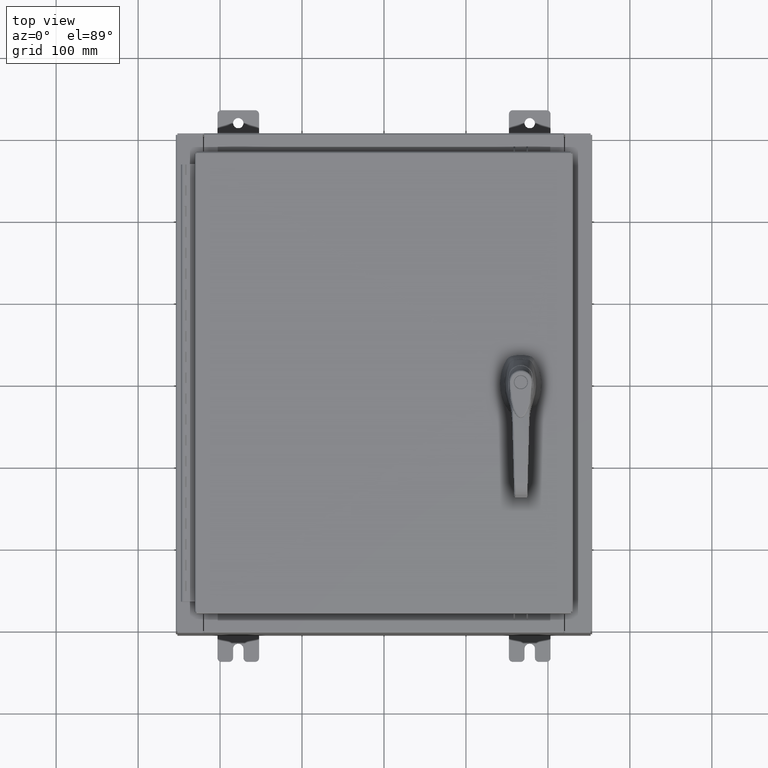
[diagram: clean part render]
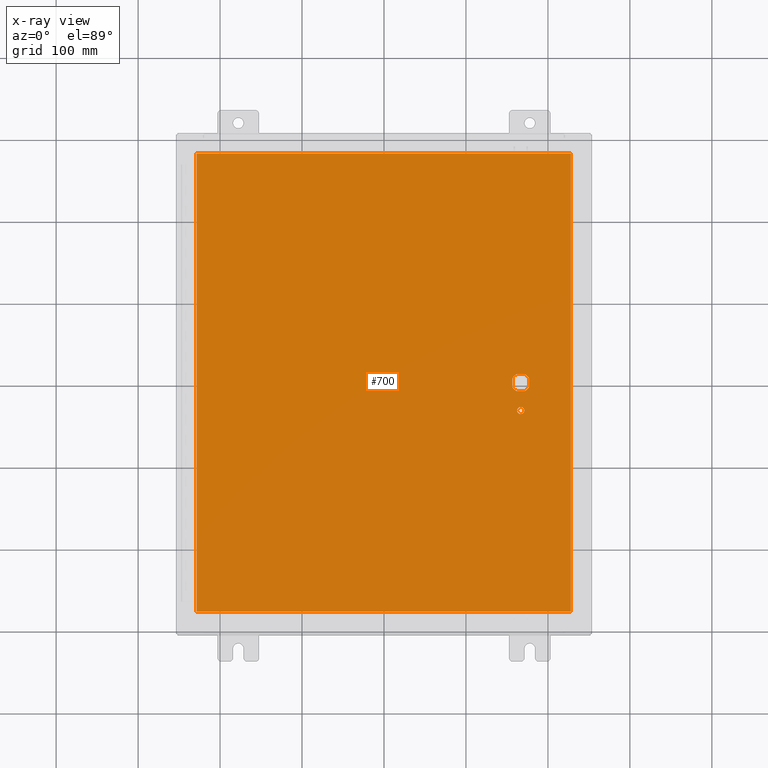
[diagram: x-ray — body ghosted, one internal face saturated and labeled with its STEP entity id]
A machine part, top view, then the same camera in x-ray: the body is ghosted and one INTERNAL B-rep face — a face not visible from any outside direction — is saturated and labeled: STEP entity #700.
In plain terms, the highlighted planar face has unit normal (0, 0, -1).
Its self-contained STEP definition (entity closure, byte-faithful):
#336 = FACE_BOUND ( 'NONE', #86844, .T. ) ;
#700 = ADVANCED_FACE ( 'NONE', ( #47177, #44428, #336 ), #49304, .T. ) ;
#1377 = EDGE_CURVE ( 'NONE', #5044, #94620, #53486, .T. ) ;
#2254 = DIRECTION ( 'NONE',  ( 0.0000000000000000000, -1.000000000000000000, 0.0000000000000000000 ) ) ;
#3161 = VERTEX_POINT ( 'NONE', #6481 ) ;
#3750 = AXIS2_PLACEMENT_3D ( 'NONE', #81539, #29363, #90413 ) ;
#4256 = DIRECTION ( 'NONE',  ( 0.0000000000000000000, 1.000000000000000000, 0.0000000000000000000 ) ) ;
#5044 = VERTEX_POINT ( 'NONE', #45808 ) ;
#5691 = EDGE_CURVE ( 'NONE', #94620, #77066, #73472, .T. ) ;
#6481 = CARTESIAN_POINT ( 'NONE',  ( -8.990299999999997700, -11.00630000000000100, -0.07470000000000000300 ) ) ;
#11103 = CARTESIAN_POINT ( 'NONE',  ( 6.980999999999924400, -0.2002273707563080300, -0.07470000000000003000 ) ) ;
#11163 = CARTESIAN_POINT ( 'NONE',  ( 6.175000000000072700, 0.0000000000000000000, -0.07470000000000003000 ) ) ;
#12746 = VERTEX_POINT ( 'NONE', #52435 ) ;
#15709 = CARTESIAN_POINT ( 'NONE',  ( 6.778227370756308500, 0.4029999999999250300, -0.07470000000000003000 ) ) ;
#16174 = CARTESIAN_POINT ( 'NONE',  ( 6.980999999999924400, 0.2002273707563080300, -0.07470000000000003000 ) ) ;
#16322 = CARTESIAN_POINT ( 'NONE',  ( 8.990299999999997700, -11.00630000000000000, -0.07470000000000000300 ) ) ;
#16922 = DIRECTION ( 'NONE',  ( -0.0000000000000000000, -0.0000000000000000000, 1.000000000000000000 ) ) ;
#17497 = DIRECTION ( 'NONE',  ( -0.0000000000000000000, -0.0000000000000000000, 1.000000000000000000 ) ) ;
#18223 = AXIS2_PLACEMENT_3D ( 'NONE', #28388, #89399, #37247 ) ;
#18788 = EDGE_CURVE ( 'NONE', #12746, #19975, #79058, .T. ) ;
#19975 = VERTEX_POINT ( 'NONE', #105579 ) ;
#20400 = ORIENTED_EDGE ( 'NONE', *, *, #89508, .F. ) ;
#20974 = CIRCLE ( 'NONE', #43284, 0.4499999999999156900 ) ;
#21824 = CARTESIAN_POINT ( 'NONE',  ( 8.990299999999999500, 11.00630000000000000, -0.07470000000000019700 ) ) ;
#22507 = LINE ( 'NONE', #61146, #110072 ) ;
#22527 = CARTESIAN_POINT ( 'NONE',  ( 6.577999999999998500, 0.0000000000000000000, -0.07470000000000003000 ) ) ;
#23344 = DIRECTION ( 'NONE',  ( 1.000000000000000000, -0.0000000000000000000, -0.0000000000000000000 ) ) ;
#24989 = ORIENTED_EDGE ( 'NONE', *, *, #86472, .F. ) ;
#27479 = CARTESIAN_POINT ( 'NONE',  ( 6.749499999999998500, -1.338000000000000100, -0.07470000000000003000 ) ) ;
#28388 = CARTESIAN_POINT ( 'NONE',  ( 6.577999999999998500, -1.338000000000000100, -0.07470000000000003000 ) ) ;
#29363 = DIRECTION ( 'NONE',  ( -0.0000000000000000000, -0.0000000000000000000, 1.000000000000000000 ) ) ;
#29969 = VECTOR ( 'NONE', #48286, 39.37007874015748100 ) ;
#31354 = DIRECTION ( 'NONE',  ( -1.000000000000000000, 0.0000000000000000000, 0.0000000000000000000 ) ) ;
#35518 = LINE ( 'NONE', #66854, #61414 ) ;
#36720 = EDGE_CURVE ( 'NONE', #78591, #5044, #68829, .T. ) ;
#37247 = DIRECTION ( 'NONE',  ( -1.000000000000000000, 0.0000000000000000000, 0.0000000000000000000 ) ) ;
#38603 = DIRECTION ( 'NONE',  ( 0.0000000000000000000, -1.000000000000000000, 0.0000000000000000000 ) ) ;
#38652 = DIRECTION ( 'NONE',  ( -1.000000000000000000, 0.0000000000000000000, -0.0000000000000000000 ) ) ;
#40643 = ORIENTED_EDGE ( 'NONE', *, *, #82491, .T. ) ;
#40716 = AXIS2_PLACEMENT_3D ( 'NONE', #66097, #56023, #90383 ) ;
#42411 = CIRCLE ( 'NONE', #3750, 0.1715000000000000700 ) ;
#42793 = EDGE_CURVE ( 'NONE', #3161, #56463, #35518, .T. ) ;
#43284 = AXIS2_PLACEMENT_3D ( 'NONE', #22527, #83548, #31354 ) ;
#44084 = DIRECTION ( 'NONE',  ( 0.0000000000000000000, -1.000000000000000000, 0.0000000000000000000 ) ) ;
#44428 = FACE_OUTER_BOUND ( 'NONE', #84090, .T. ) ;
#44779 = ORIENTED_EDGE ( 'NONE', *, *, #92872, .F. ) ;
#45808 = CARTESIAN_POINT ( 'NONE',  ( 6.377772629243688500, -0.4029999999999250300, -0.07470000000000003000 ) ) ;
#47177 = FACE_BOUND ( 'NONE', #53402, .T. ) ;
#47378 = CARTESIAN_POINT ( 'NONE',  ( 6.980999999999924400, 0.0000000000000000000, -0.07470000000000003000 ) ) ;
#48286 = DIRECTION ( 'NONE',  ( -1.000000000000000000, -0.0000000000000000000, -0.0000000000000000000 ) ) ;
#49304 = PLANE ( 'NONE',  #65180 ) ;
#52370 = ORIENTED_EDGE ( 'NONE', *, *, #5691, .T. ) ;
#52435 = CARTESIAN_POINT ( 'NONE',  ( 8.990299999999997700, 11.00630000000000000, -0.07470000000000000300 ) ) ;
#52807 = CARTESIAN_POINT ( 'NONE',  ( -8.990299999999999500, 11.00630000000000100, -0.07470000000000019700 ) ) ;
#53402 = EDGE_LOOP ( 'NONE', ( #54213, #40643 ) ) ;
#53486 = LINE ( 'NONE', #57597, #97222 ) ;
#54213 = ORIENTED_EDGE ( 'NONE', *, *, #97761, .T. ) ;
#55844 = DIRECTION ( 'NONE',  ( 0.0000000000000000000, 0.0000000000000000000, -1.000000000000000000 ) ) ;
#56023 = DIRECTION ( 'NONE',  ( -0.0000000000000000000, -0.0000000000000000000, 1.000000000000000000 ) ) ;
#56463 = VERTEX_POINT ( 'NONE', #16322 ) ;
#57597 = CARTESIAN_POINT ( 'NONE',  ( 0.0000000000000000000, -0.4029999999999252000, -0.07470000000000003000 ) ) ;
#58902 = CARTESIAN_POINT ( 'NONE',  ( 0.0000000000000000000, 0.0000000000000000000, -0.07470000000000000300 ) ) ;
#60964 = ORIENTED_EDGE ( 'NONE', *, *, #84249, .T. ) ;
#61146 = CARTESIAN_POINT ( 'NONE',  ( 0.0000000000000000000, 0.4029999999999252000, -0.07470000000000003000 ) ) ;
#61414 = VECTOR ( 'NONE', #23344, 39.37007874015748100 ) ;
#62979 = LINE ( 'NONE', #52807, #83361 ) ;
#63882 = CARTESIAN_POINT ( 'NONE',  ( 6.778227370756308500, -0.4029999999999252000, -0.07470000000000003000 ) ) ;
#65180 = AXIS2_PLACEMENT_3D ( 'NONE', #58902, #55844, #38652 ) ;
#65389 = ORIENTED_EDGE ( 'NONE', *, *, #18788, .F. ) ;
#66097 = CARTESIAN_POINT ( 'NONE',  ( 6.577999999999998500, 0.0000000000000000000, -0.07470000000000003000 ) ) ;
#66766 = EDGE_CURVE ( 'NONE', #75467, #85301, #20974, .T. ) ;
#66854 = CARTESIAN_POINT ( 'NONE',  ( -8.990300000000001300, -11.00630000000000100, -0.07469999999999910000 ) ) ;
#67320 = CIRCLE ( 'NONE', #113590, 0.4499999999999156900 ) ;
#68818 = ORIENTED_EDGE ( 'NONE', *, *, #111131, .T. ) ;
#68829 = CIRCLE ( 'NONE', #73945, 0.4499999999999156900 ) ;
#69298 = CARTESIAN_POINT ( 'NONE',  ( 6.577999999999998500, 0.0000000000000000000, -0.07470000000000003000 ) ) ;
#69862 = CARTESIAN_POINT ( 'NONE',  ( 6.577999999999998500, 0.0000000000000000000, -0.07470000000000003000 ) ) ;
#70089 = LINE ( 'NONE', #47378, #90610 ) ;
#73472 = CIRCLE ( 'NONE', #40716, 0.4499999999999156900 ) ;
#73945 = AXIS2_PLACEMENT_3D ( 'NONE', #69862, #17497, #78575 ) ;
#75467 = VERTEX_POINT ( 'NONE', #94061 ) ;
#75497 = VERTEX_POINT ( 'NONE', #15709 ) ;
#76800 = CARTESIAN_POINT ( 'NONE',  ( 6.406499999999998500, -1.338000000000000100, -0.07470000000000003000 ) ) ;
#77066 = VERTEX_POINT ( 'NONE', #11103 ) ;
#78006 = DIRECTION ( 'NONE',  ( -1.000000000000000000, 0.0000000000000000000, 0.0000000000000000000 ) ) ;
#78575 = DIRECTION ( 'NONE',  ( -1.000000000000000000, 8.881784197001256300E-016, 0.0000000000000000000 ) ) ;
#78591 = VERTEX_POINT ( 'NONE', #89439 ) ;
#79058 = LINE ( 'NONE', #21824, #29969 ) ;
#81539 = CARTESIAN_POINT ( 'NONE',  ( 6.577999999999998500, -1.338000000000000100, -0.07470000000000003000 ) ) ;
#82117 = LINE ( 'NONE', #82274, #84904 ) ;
#82274 = CARTESIAN_POINT ( 'NONE',  ( 8.990299999999997700, -11.00630000000000000, -0.07470000000000021100 ) ) ;
#82491 = EDGE_CURVE ( 'NONE', #107346, #113549, #103136, .T. ) ;
#83361 = VECTOR ( 'NONE', #44084, 39.37007874015748100 ) ;
#83548 = DIRECTION ( 'NONE',  ( -0.0000000000000000000, -0.0000000000000000000, 1.000000000000000000 ) ) ;
#84090 = EDGE_LOOP ( 'NONE', ( #24989, #110843, #20400, #65389 ) ) ;
#84249 = EDGE_CURVE ( 'NONE', #98167, #75497, #67320, .T. ) ;
#84904 = VECTOR ( 'NONE', #4256, 39.37007874015748100 ) ;
#85301 = VERTEX_POINT ( 'NONE', #90876 ) ;
#86472 = EDGE_CURVE ( 'NONE', #56463, #12746, #82117, .T. ) ;
#86557 = ORIENTED_EDGE ( 'NONE', *, *, #36720, .T. ) ;
#86844 = EDGE_LOOP ( 'NONE', ( #52370, #44779, #60964, #90332, #107034, #68818, #86557, #111220 ) ) ;
#87696 = VECTOR ( 'NONE', #2254, 39.37007874015748100 ) ;
#89319 = DIRECTION ( 'NONE',  ( 1.000000000000000000, 0.0000000000000000000, 0.0000000000000000000 ) ) ;
#89399 = DIRECTION ( 'NONE',  ( -0.0000000000000000000, -0.0000000000000000000, 1.000000000000000000 ) ) ;
#89439 = CARTESIAN_POINT ( 'NONE',  ( 6.175000000000072700, -0.2002273707563079800, -0.07470000000000003000 ) ) ;
#89508 = EDGE_CURVE ( 'NONE', #19975, #3161, #62979, .T. ) ;
#90332 = ORIENTED_EDGE ( 'NONE', *, *, #102809, .T. ) ;
#90383 = DIRECTION ( 'NONE',  ( -1.000000000000000000, 0.0000000000000000000, 0.0000000000000000000 ) ) ;
#90413 = DIRECTION ( 'NONE',  ( -1.000000000000000000, 0.0000000000000000000, 0.0000000000000000000 ) ) ;
#90610 = VECTOR ( 'NONE', #38603, 39.37007874015748100 ) ;
#90876 = CARTESIAN_POINT ( 'NONE',  ( 6.175000000000072700, 0.2002273707563080300, -0.07470000000000003000 ) ) ;
#92872 = EDGE_CURVE ( 'NONE', #98167, #77066, #70089, .T. ) ;
#94061 = CARTESIAN_POINT ( 'NONE',  ( 6.377772629243688500, 0.4029999999999252000, -0.07470000000000003000 ) ) ;
#94620 = VERTEX_POINT ( 'NONE', #63882 ) ;
#97222 = VECTOR ( 'NONE', #89319, 39.37007874015748100 ) ;
#97761 = EDGE_CURVE ( 'NONE', #113549, #107346, #42411, .T. ) ;
#98167 = VERTEX_POINT ( 'NONE', #16174 ) ;
#102809 = EDGE_CURVE ( 'NONE', #75497, #75467, #22507, .T. ) ;
#103136 = CIRCLE ( 'NONE', #18223, 0.1715000000000000700 ) ;
#105579 = CARTESIAN_POINT ( 'NONE',  ( -8.990299999999999500, 11.00630000000000000, -0.07470000000000000300 ) ) ;
#107034 = ORIENTED_EDGE ( 'NONE', *, *, #66766, .T. ) ;
#107346 = VERTEX_POINT ( 'NONE', #76800 ) ;
#108346 = LINE ( 'NONE', #11163, #87696 ) ;
#110072 = VECTOR ( 'NONE', #113561, 39.37007874015748100 ) ;
#110843 = ORIENTED_EDGE ( 'NONE', *, *, #42793, .F. ) ;
#111131 = EDGE_CURVE ( 'NONE', #85301, #78591, #108346, .T. ) ;
#111220 = ORIENTED_EDGE ( 'NONE', *, *, #1377, .T. ) ;
#113549 = VERTEX_POINT ( 'NONE', #27479 ) ;
#113561 = DIRECTION ( 'NONE',  ( -1.000000000000000000, 0.0000000000000000000, 0.0000000000000000000 ) ) ;
#113590 = AXIS2_PLACEMENT_3D ( 'NONE', #69298, #16922, #78006 ) ;